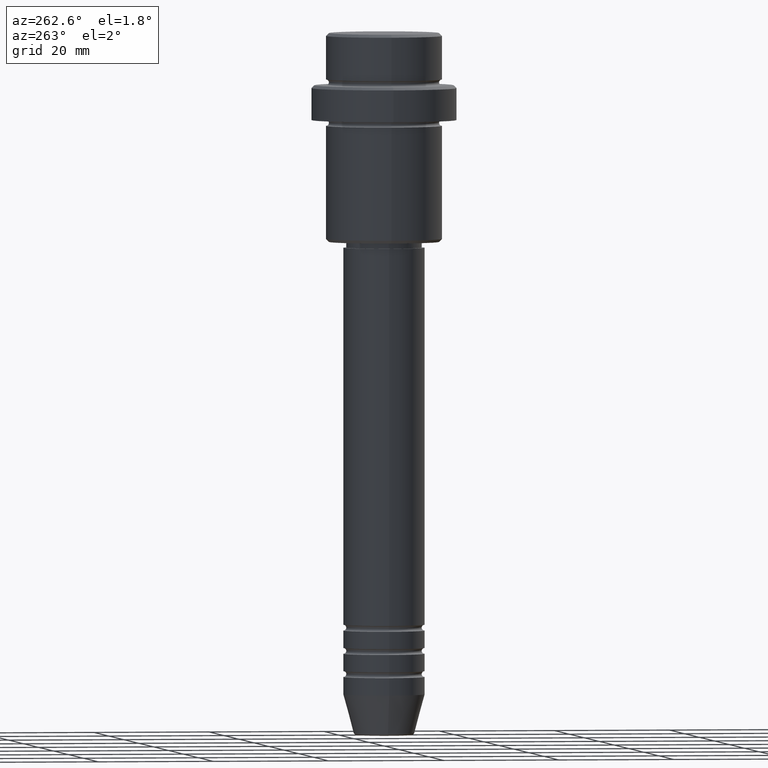
[diagram: clean part render]
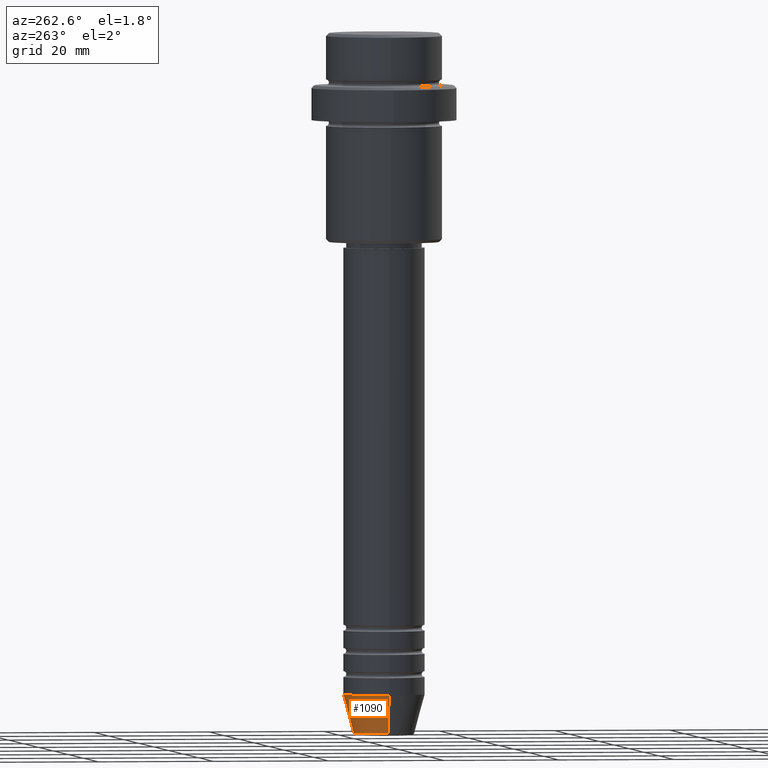
[diagram: same view with one face highlighted and labeled with its STEP entity id]
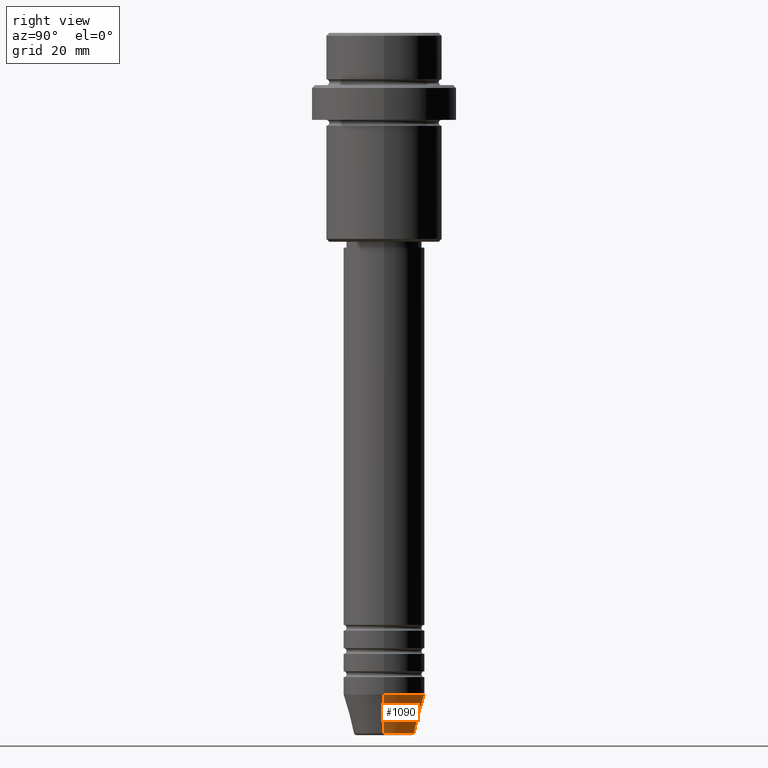
[diagram: same view with one face highlighted and labeled with its STEP entity id]
A machine part, auxiliary view. The second image highlights one B-rep face of the part: STEP entity #1090.
A second angle (right view) of the same face is appended — the face is thin or edge-on in the first view.
In plain terms, the highlighted conical surface has half-angle 15 deg.
Its self-contained STEP definition (entity closure, byte-faithful):
#39 = CARTESIAN_POINT ( 'NONE',  ( 5.223655072137196598, 0.000000000000000000, -120.6294095225512422 ) ) ;
#75 = AXIS2_PLACEMENT_3D ( 'NONE', #943, #635, #1377 ) ;
#87 = DIRECTION ( 'NONE',  ( 1.000000000000000000, 0.000000000000000000, 0.000000000000000000 ) ) ;
#92 = CARTESIAN_POINT ( 'NONE',  ( -7.000000000000000000, 8.572527594031473190E-16, -114.0000000000000000 ) ) ;
#181 = ORIENTED_EDGE ( 'NONE', *, *, #1280, .T. ) ;
#241 = VECTOR ( 'NONE', #1341, 1000.000000000000000 ) ;
#250 = CARTESIAN_POINT ( 'NONE',  ( 7.000000000000000000, 0.000000000000000000, -114.0000000000000000 ) ) ;
#260 = CIRCLE ( 'NONE', #75, 7.000000000000000000 ) ;
#293 = CARTESIAN_POINT ( 'NONE',  ( -7.000000000000000000, 8.572527594031473190E-16, -114.0000000000000000 ) ) ;
#358 = DIRECTION ( 'NONE',  ( -0.000000000000000000, -0.000000000000000000, 1.000000000000000000 ) ) ;
#377 = FACE_OUTER_BOUND ( 'NONE', #956, .T. ) ;
#480 = CARTESIAN_POINT ( 'NONE',  ( 7.000000000000000000, 0.000000000000000000, -114.0000000000000000 ) ) ;
#491 = LINE ( 'NONE', #293, #531 ) ;
#494 = VERTEX_POINT ( 'NONE', #92 ) ;
#531 = VECTOR ( 'NONE', #1156, 1000.000000000000000 ) ;
#539 = ORIENTED_EDGE ( 'NONE', *, *, #1021, .F. ) ;
#588 = VERTEX_POINT ( 'NONE', #39 ) ;
#635 = DIRECTION ( 'NONE',  ( -0.000000000000000000, -0.000000000000000000, 1.000000000000000000 ) ) ;
#688 = LINE ( 'NONE', #480, #241 ) ;
#752 = EDGE_CURVE ( 'NONE', #781, #494, #491, .T. ) ;
#777 = EDGE_CURVE ( 'NONE', #1111, #494, #260, .T. ) ;
#781 = VERTEX_POINT ( 'NONE', #1371 ) ;
#842 = CARTESIAN_POINT ( 'NONE',  ( 0.000000000000000000, 0.000000000000000000, -120.6294095225512422 ) ) ;
#907 = CARTESIAN_POINT ( 'NONE',  ( 0.000000000000000000, 0.000000000000000000, -114.0000000000000000 ) ) ;
#943 = CARTESIAN_POINT ( 'NONE',  ( 0.000000000000000000, 0.000000000000000000, -114.0000000000000000 ) ) ;
#956 = EDGE_LOOP ( 'NONE', ( #181, #1057, #1411, #539 ) ) ;
#964 = AXIS2_PLACEMENT_3D ( 'NONE', #842, #1276, #87 ) ;
#1007 = AXIS2_PLACEMENT_3D ( 'NONE', #907, #358, #1346 ) ;
#1021 = EDGE_CURVE ( 'NONE', #588, #1111, #688, .T. ) ;
#1057 = ORIENTED_EDGE ( 'NONE', *, *, #752, .T. ) ;
#1090 = ADVANCED_FACE ( 'NONE', ( #377 ), #1194, .T. ) ;
#1111 = VERTEX_POINT ( 'NONE', #250 ) ;
#1147 = CIRCLE ( 'NONE', #964, 5.223655072137196598 ) ;
#1156 = DIRECTION ( 'NONE',  ( -0.2588190451025213501, 3.169619151431772337E-17, 0.9659258262890680902 ) ) ;
#1194 = CONICAL_SURFACE ( 'NONE', #1007, 7.000000000000000000, 0.2617993877991500740 ) ;
#1276 = DIRECTION ( 'NONE',  ( -0.000000000000000000, -0.000000000000000000, 1.000000000000000000 ) ) ;
#1280 = EDGE_CURVE ( 'NONE', #588, #781, #1147, .T. ) ;
#1341 = DIRECTION ( 'NONE',  ( 0.2588190451025213501, 0.000000000000000000, 0.9659258262890680902 ) ) ;
#1346 = DIRECTION ( 'NONE',  ( 1.000000000000000000, 0.000000000000000000, 0.000000000000000000 ) ) ;
#1371 = CARTESIAN_POINT ( 'NONE',  ( -5.223655072137196598, 7.484830028987063133E-16, -120.6294095225512422 ) ) ;
#1377 = DIRECTION ( 'NONE',  ( 1.000000000000000000, 0.000000000000000000, 0.000000000000000000 ) ) ;
#1411 = ORIENTED_EDGE ( 'NONE', *, *, #777, .F. ) ;